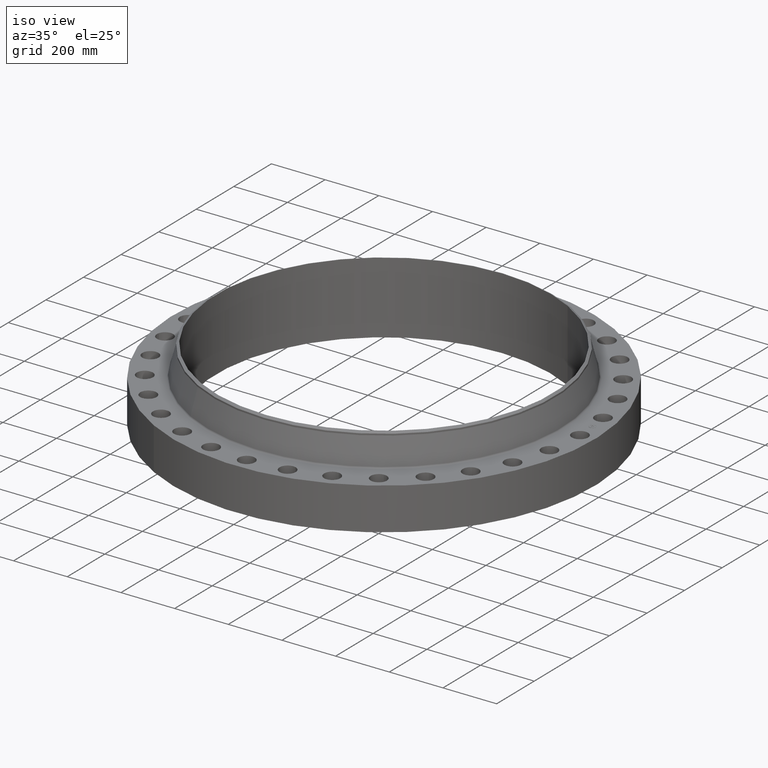
[diagram: clean part render]
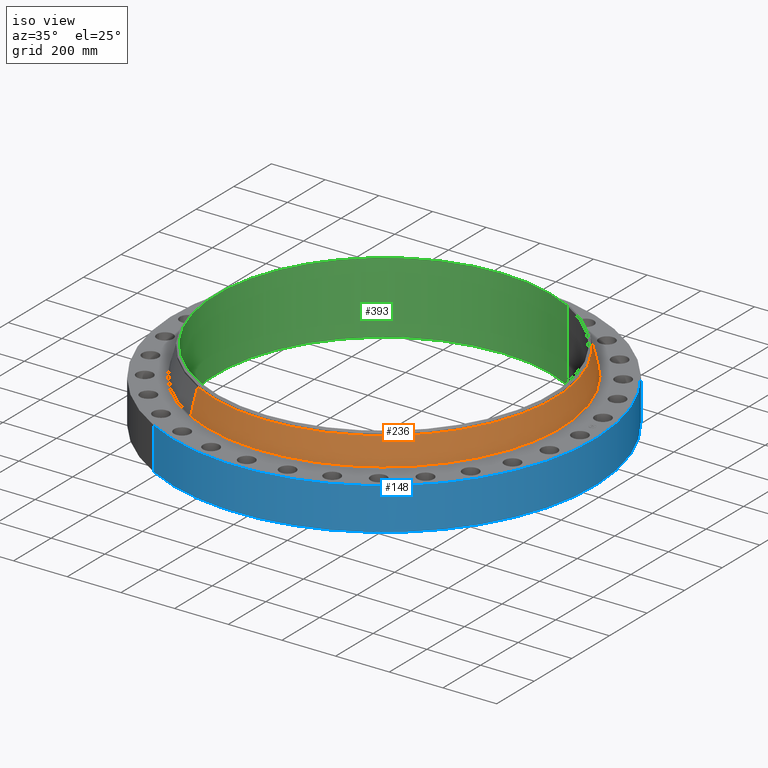
[diagram: same view with three faces highlighted in distinct colors, each labeled with its STEP entity id]
A machine part, iso view with three faces highlighted in distinct colors.
Their STEP definitions:

[orange] entity #236 — the highlighted conical surface has half-angle 14.403 deg.
#172=AXIS2_PLACEMENT_3D('Circle Axis2P3D',#170,#171,$) ;
#209=AXIS2_PLACEMENT_3D('Cone Axis2P3D',#206,#207,#208) ;
#220=AXIS2_PLACEMENT_3D('Circle Axis2P3D',#218,#219,$) ;
#167=CARTESIAN_POINT('Vertex',(12.4419401873,22.7748187471,6.37781624923)) ;
#170=CARTESIAN_POINT('Axis2P3D Location',(0.,0.,6.37781624923)) ;
#174=CARTESIAN_POINT('Vertex',(-12.4419401873,-22.7748187471,6.37781624923)) ;
#206=CARTESIAN_POINT('Axis2P3D Location',(0.,0.,10.0839898439)) ;
#211=CARTESIAN_POINT('Line Origine',(12.2137893262,22.3571913972,8.23090304654)) ;
#215=CARTESIAN_POINT('Vertex',(11.9856384652,21.9395640473,10.0839898439)) ;
#218=CARTESIAN_POINT('Axis2P3D Location',(0.,0.,10.0839898439)) ;
#222=CARTESIAN_POINT('Vertex',(-11.9856384652,-21.9395640473,10.0839898439)) ;
#225=CARTESIAN_POINT('Line Origine',(-12.2137893262,-22.3571913972,8.23090304654)) ;
#171=DIRECTION('Axis2P3D Direction',(0.,0.,-0.0393700787402)) ;
#207=DIRECTION('Axis2P3D Direction',(0.,0.,-0.0393700787402)) ;
#208=DIRECTION('Axis2P3D XDirection',(-0.0188750212049,-0.0345504945626,0.)) ;
#212=DIRECTION('Vector Direction',(0.00469487845942,0.0085939173749,-0.0381327392199)) ;
#219=DIRECTION('Axis2P3D Direction',(0.,0.,-0.0393700787402)) ;
#226=DIRECTION('Vector Direction',(-0.00469487845942,-0.0085939173749,-0.0381327392199)) ;
#213=VECTOR('Line Direction',#212,0.0393700787402) ;
#227=VECTOR('Line Direction',#226,0.0393700787402) ;
#231=ORIENTED_EDGE('',*,*,#176,.F.) ;
#232=ORIENTED_EDGE('',*,*,#217,.T.) ;
#233=ORIENTED_EDGE('',*,*,#224,.T.) ;
#234=ORIENTED_EDGE('',*,*,#229,.F.) ;
#236=ADVANCED_FACE('PartBody',(#235),#210,.T.) ;
#173=CIRCLE('generated circle',#172,25.9517676583) ;
#221=CIRCLE('generated circle',#220,25.0000000001) ;
#210=CONICAL_SURFACE('Cone',#209,25.0000000001,0.251373991958) ;
#176=EDGE_CURVE('',#168,#175,#173,.T.) ;
#217=EDGE_CURVE('',#168,#216,#214,.F.) ;
#224=EDGE_CURVE('',#216,#223,#221,.T.) ;
#229=EDGE_CURVE('',#175,#223,#228,.F.) ;
#230=EDGE_LOOP('',(#231,#232,#233,#234)) ;
#235=FACE_OUTER_BOUND('',#230,.T.) ;
#214=LINE('Line',#211,#213) ;
#228=LINE('Line',#225,#227) ;
#168=VERTEX_POINT('',#167) ;
#175=VERTEX_POINT('',#174) ;
#216=VERTEX_POINT('',#215) ;
#223=VERTEX_POINT('',#222) ;

[blue] entity #148 — the highlighted cylindrical surface (partial cylindrical patch) has radius 784.225 mm, axis along (0, 0, -1).
#95=AXIS2_PLACEMENT_3D('Cylinder Axis2P3D',#92,#93,#94) ;
#134=AXIS2_PLACEMENT_3D('Circle Axis2P3D',#132,#133,$) ;
#139=AXIS2_PLACEMENT_3D('Circle Axis2P3D',#137,#138,$) ;
#92=CARTESIAN_POINT('Axis2P3D Location',(0.,0.,5.33000000002)) ;
#101=CARTESIAN_POINT('Vertex',(-14.8022635045,-27.0953615985,3.35689481461E-015)) ;
#103=CARTESIAN_POINT('Vertex',(14.8022635045,27.0953615985,3.35689481461E-015)) ;
#106=CARTESIAN_POINT('Line Origine',(-14.8022635045,-27.0953615985,3.09500000001)) ;
#110=CARTESIAN_POINT('Vertex',(-14.8022635045,-27.0953615985,6.19000000002)) ;
#117=CARTESIAN_POINT('Vertex',(14.8022635045,27.0953615985,6.19000000002)) ;
#120=CARTESIAN_POINT('Line Origine',(14.8022635045,27.0953615985,3.09500000001)) ;
#132=CARTESIAN_POINT('Axis2P3D Location',(0.,0.,3.35689481461E-015)) ;
#137=CARTESIAN_POINT('Axis2P3D Location',(0.,0.,6.19000000002)) ;
#93=DIRECTION('Axis2P3D Direction',(0.,0.,-0.0393700787402)) ;
#94=DIRECTION('Axis2P3D XDirection',(0.0188750212049,0.0345504945626,0.)) ;
#107=DIRECTION('Vector Direction',(0.,0.,-0.0393700787402)) ;
#121=DIRECTION('Vector Direction',(0.,0.,-0.0393700787402)) ;
#133=DIRECTION('Axis2P3D Direction',(0.,0.,-0.0393700787402)) ;
#138=DIRECTION('Axis2P3D Direction',(0.,0.,-0.0393700787402)) ;
#108=VECTOR('Line Direction',#107,0.0393700787402) ;
#122=VECTOR('Line Direction',#121,0.0393700787402) ;
#143=ORIENTED_EDGE('',*,*,#136,.F.) ;
#144=ORIENTED_EDGE('',*,*,#124,.T.) ;
#145=ORIENTED_EDGE('',*,*,#141,.T.) ;
#146=ORIENTED_EDGE('',*,*,#112,.F.) ;
#148=ADVANCED_FACE('PartBody',(#147),#96,.T.) ;
#135=CIRCLE('generated circle',#134,30.8750000001) ;
#140=CIRCLE('generated circle',#139,30.8750000001) ;
#96=CYLINDRICAL_SURFACE('generated cylinder',#95,30.8750000001) ;
#112=EDGE_CURVE('',#102,#111,#109,.F.) ;
#124=EDGE_CURVE('',#104,#118,#123,.F.) ;
#136=EDGE_CURVE('',#104,#102,#135,.T.) ;
#141=EDGE_CURVE('',#118,#111,#140,.T.) ;
#142=EDGE_LOOP('',(#143,#144,#145,#146)) ;
#147=FACE_OUTER_BOUND('',#142,.T.) ;
#109=LINE('Line',#106,#108) ;
#123=LINE('Line',#120,#122) ;
#102=VERTEX_POINT('',#101) ;
#104=VERTEX_POINT('',#103) ;
#111=VERTEX_POINT('',#110) ;
#118=VERTEX_POINT('',#117) ;

[green] entity #393 — the highlighted cylindrical surface (partial cylindrical patch) has radius 625.475 mm, axis along (0, 0, -1).
#346=AXIS2_PLACEMENT_3D('Circle Axis2P3D',#344,#345,$) ;
#366=AXIS2_PLACEMENT_3D('Cylinder Axis2P3D',#363,#364,#365) ;
#377=AXIS2_PLACEMENT_3D('Circle Axis2P3D',#375,#376,$) ;
#344=CARTESIAN_POINT('Axis2P3D Location',(-4.47585975282E-015,-2.79741234551E-015,10.56)) ;
#348=CARTESIAN_POINT('Vertex',(-11.8058538882,-21.6104705866,10.56)) ;
#350=CARTESIAN_POINT('Vertex',(11.8058538882,21.6104705866,10.56)) ;
#363=CARTESIAN_POINT('Axis2P3D Location',(0.,0.,5.33000000002)) ;
#368=CARTESIAN_POINT('Line Origine',(-11.8058538882,-21.6104705866,5.28000000002)) ;
#372=CARTESIAN_POINT('Vertex',(-11.8058538882,-21.6104705866,-7.94465106125E-014)) ;
#375=CARTESIAN_POINT('Axis2P3D Location',(0.,0.,-7.83275456743E-014)) ;
#379=CARTESIAN_POINT('Vertex',(11.8058538882,21.6104705866,-7.94465106125E-014)) ;
#382=CARTESIAN_POINT('Line Origine',(11.8058538882,21.6104705866,5.28000000002)) ;
#345=DIRECTION('Axis2P3D Direction',(0.,-0.,-0.0393700787402)) ;
#364=DIRECTION('Axis2P3D Direction',(0.,0.,-0.0393700787402)) ;
#365=DIRECTION('Axis2P3D XDirection',(0.0188750212049,0.0345504945626,0.)) ;
#369=DIRECTION('Vector Direction',(0.,0.,-0.0393700787402)) ;
#376=DIRECTION('Axis2P3D Direction',(0.,0.,-0.0393700787402)) ;
#383=DIRECTION('Vector Direction',(0.,0.,-0.0393700787402)) ;
#370=VECTOR('Line Direction',#369,0.0393700787402) ;
#384=VECTOR('Line Direction',#383,0.0393700787402) ;
#388=ORIENTED_EDGE('',*,*,#374,.T.) ;
#389=ORIENTED_EDGE('',*,*,#381,.T.) ;
#390=ORIENTED_EDGE('',*,*,#386,.F.) ;
#391=ORIENTED_EDGE('',*,*,#352,.F.) ;
#393=ADVANCED_FACE('PartBody',(#392),#367,.F.) ;
#347=CIRCLE('generated circle',#346,24.6250000001) ;
#378=CIRCLE('generated circle',#377,24.6250000001) ;
#367=CYLINDRICAL_SURFACE('generated cylinder',#366,24.6250000001) ;
#352=EDGE_CURVE('',#349,#351,#347,.T.) ;
#374=EDGE_CURVE('',#349,#373,#371,.T.) ;
#381=EDGE_CURVE('',#373,#380,#378,.T.) ;
#386=EDGE_CURVE('',#351,#380,#385,.T.) ;
#387=EDGE_LOOP('',(#388,#389,#390,#391)) ;
#392=FACE_OUTER_BOUND('',#387,.T.) ;
#371=LINE('Line',#368,#370) ;
#385=LINE('Line',#382,#384) ;
#349=VERTEX_POINT('',#348) ;
#351=VERTEX_POINT('',#350) ;
#373=VERTEX_POINT('',#372) ;
#380=VERTEX_POINT('',#379) ;